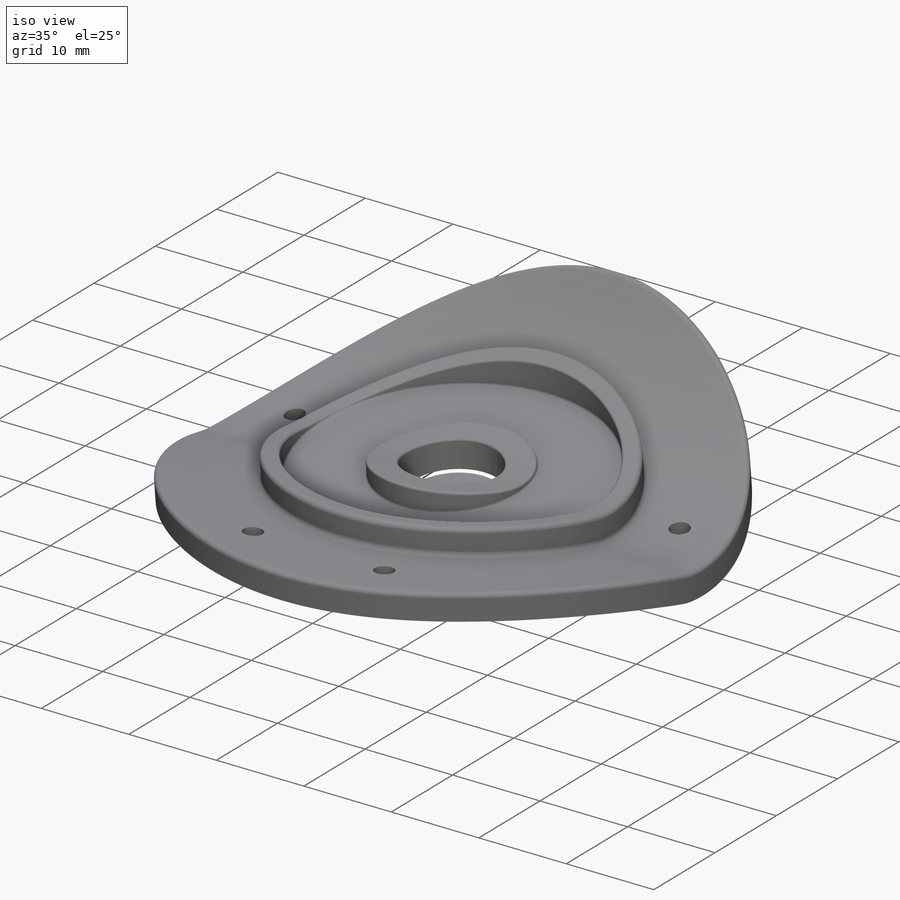
[diagram: iso view]
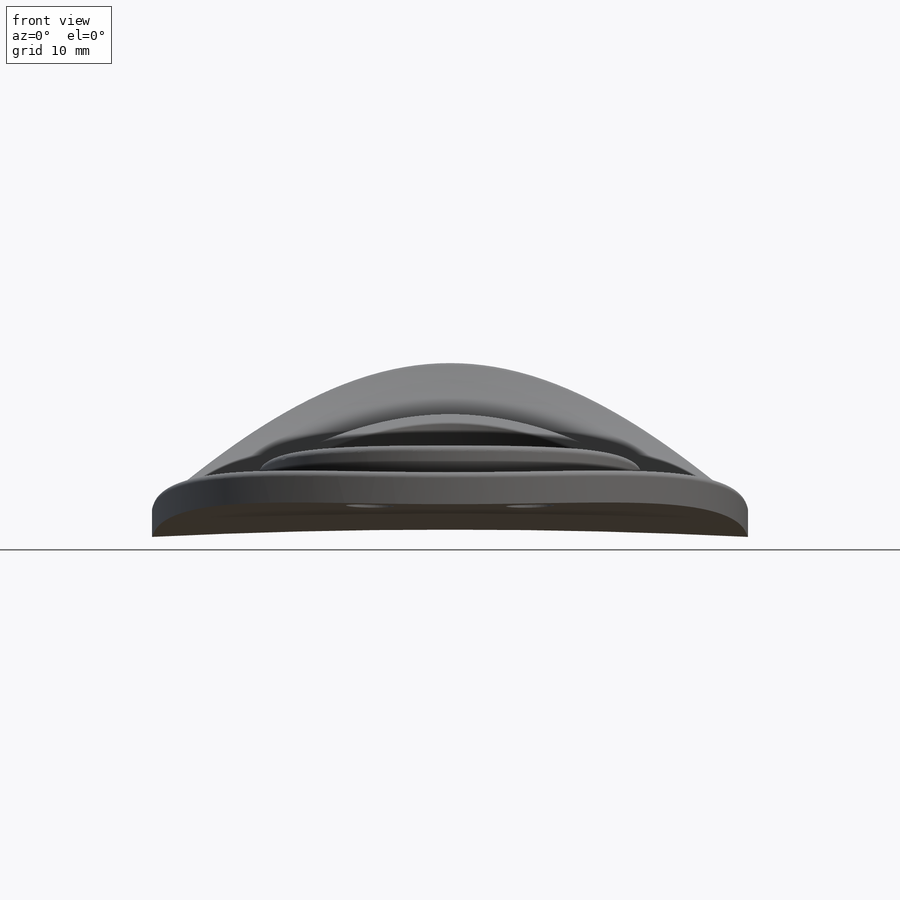
[diagram: front view]
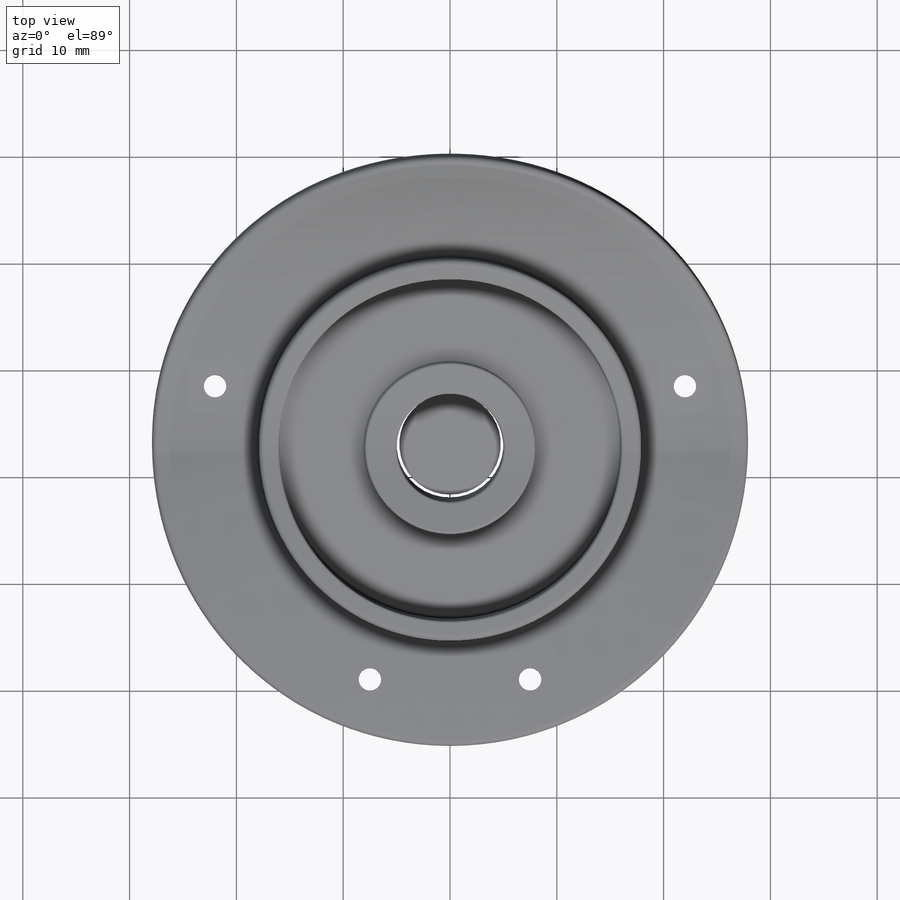
[diagram: top view]
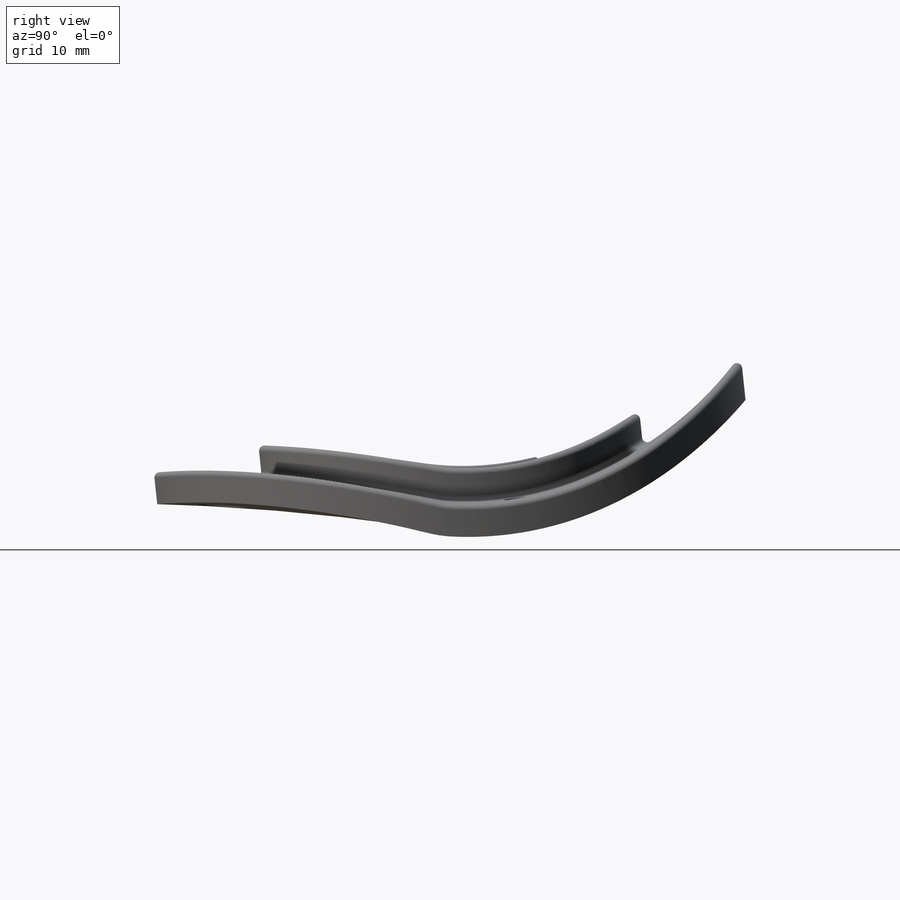
[diagram: right view]
SOLIDWORKS PART (.sldprt)
format: sldprt  version: not decoded by parser v0  size: 1,574,400 bytes
history: native  units: mm
features: fillet x5, plane x4, material x3, surface_op x1, mirror x1, sketch x1, cut_revolve x1 (+9 scaffold rows collapsed)
feature tree (25):
  scaffold x9  (default folders/planes/origin — collapsed)
  material  "Material <nicht festgelegt>"
  material  "Oben"
  material  "Rechts"
  plane  "Vorne"
  plane  "Oberfläche-Ausformung2"
  plane  "Oberfläche-Ausformung3"
  plane  "Oberfläche-Ausformung4"  Offset=1mm
  surface_op  "Oberfläche-Zusammenfügen2"  Fläche verschieben2=0deg
  mirror  "Spiegeln1"
  fillet  "Verrundung3"  Radius=0.5mm
  fillet  "Verrundung4"  Radius=0.5mm
  sketch  "Skizze1"  dims[c1.D1=~21.418787mm c2.D1=~104.719755mm c2.D2=38.05mm c2.D3=48.0mm c2.D4=5.0mm c2.D5=~5.890921mm c2.D6=3.0mm c2.D7=8.0mm c2.D8=16.0mm c2.D9=~8.569416mm]
  cut_revolve  "Schnitt-Rotation1"  [1 undecoded]
  fillet  "Verrundung5"  Radius=0.25mm
  fillet  "Verrundung6"  Radius=0.25mm
  fillet  "Verrundung7"  Radius=0.25mm
decode coverage: 7 of 9 modeling features carry decoded parameters
note: ~ marks probable driven/reference dimensions
note: 1 parameter value undecoded
note: suppression state not decoded; provenance and decode notes live in map.json
